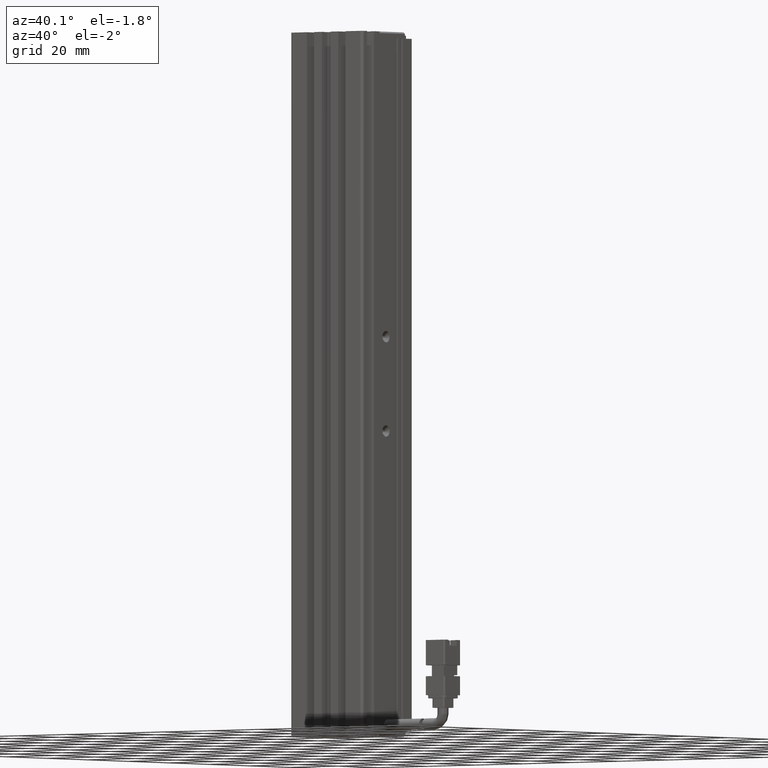
[diagram: clean part render]
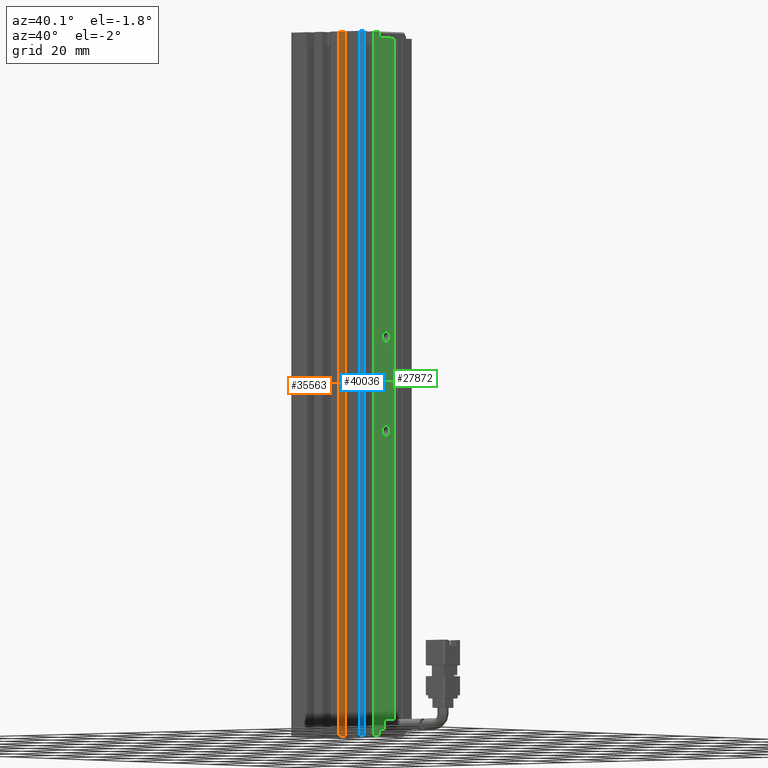
[diagram: same view with three faces highlighted in distinct colors, each labeled with its STEP entity id]
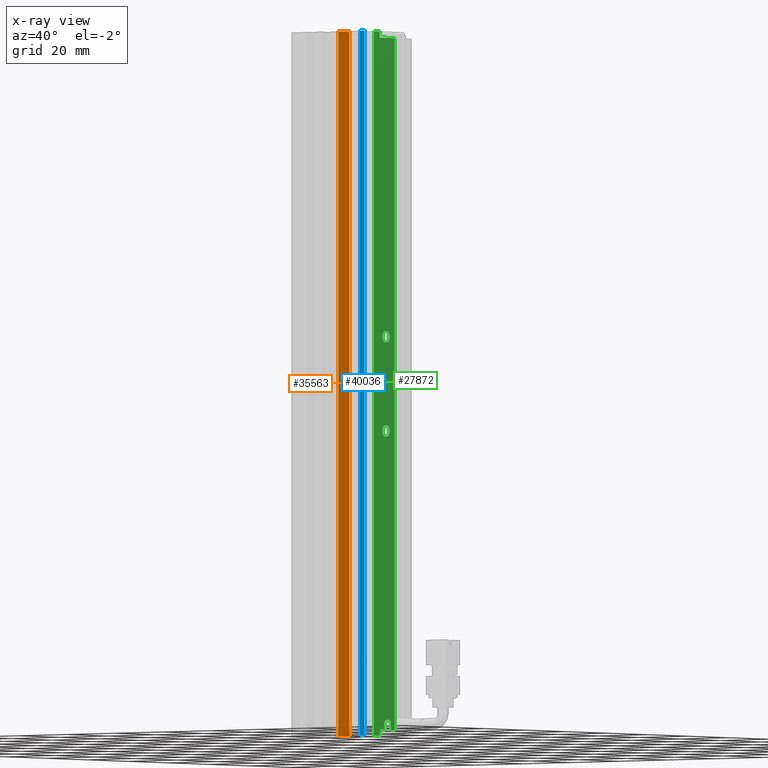
[diagram: x-ray of the same camera — body ghosted, the three highlighted faces saturated]
A machine part, auxiliary view with three faces highlighted in distinct colors.
The next image is the same camera in x-ray (body ghosted, the three faces saturated) — at least one of them is partly hidden behind the body in this view.
Their STEP definitions:

[orange] entity #35563 — the highlighted planar face has unit normal (-1, -0, 0).
#1220 = VECTOR ( 'NONE', #12479, 1000.000000000000000 ) ;
#1649 = AXIS2_PLACEMENT_3D ( 'NONE', #18157, #44726, #21977 ) ;
#2631 = CARTESIAN_POINT ( 'NONE',  ( 45.92537974683541800, 10.69594479660386800, -3.000000000000002700 ) ) ;
#3314 = LINE ( 'NONE', #49228, #12298 ) ;
#3680 = EDGE_LOOP ( 'NONE', ( #29346, #7209, #21223, #5135 ) ) ;
#5135 = ORIENTED_EDGE ( 'NONE', *, *, #6195, .T. ) ;
#6195 = EDGE_CURVE ( 'NONE', #34228, #33399, #31683, .T. ) ;
#7209 = ORIENTED_EDGE ( 'NONE', *, *, #21504, .F. ) ;
#7237 = LINE ( 'NONE', #37166, #26393 ) ;
#10533 = DIRECTION ( 'NONE',  ( 0.0000000000000000000, 0.0000000000000000000, 1.000000000000000000 ) ) ;
#11780 = CARTESIAN_POINT ( 'NONE',  ( 45.92537974683541800, 10.69594479660386800, -227.0000000000000000 ) ) ;
#12298 = VECTOR ( 'NONE', #30335, 1000.000000000000000 ) ;
#12390 = VECTOR ( 'NONE', #26938, 1000.000000000000000 ) ;
#12479 = DIRECTION ( 'NONE',  ( 0.0000000000000000000, 1.000000000000000000, -0.0000000000000000000 ) ) ;
#18157 = CARTESIAN_POINT ( 'NONE',  ( 45.92537974683541800, 7.083797468354439400, -3.000000000000002700 ) ) ;
#18432 = VERTEX_POINT ( 'NONE', #45256 ) ;
#18820 = VERTEX_POINT ( 'NONE', #2631 ) ;
#21223 = ORIENTED_EDGE ( 'NONE', *, *, #29469, .F. ) ;
#21504 = EDGE_CURVE ( 'NONE', #18820, #18432, #41540, .T. ) ;
#21977 = DIRECTION ( 'NONE',  ( 3.154042683594197100E-016, -1.000000000000000000, 0.0000000000000000000 ) ) ;
#23079 = CARTESIAN_POINT ( 'NONE',  ( 45.92537974683541800, 7.083797468354437600, -3.000000000000002700 ) ) ;
#25231 = CARTESIAN_POINT ( 'NONE',  ( 45.92537974683541800, 16.19594479660386800, -227.0000000000000000 ) ) ;
#25651 = PLANE ( 'NONE',  #1649 ) ;
#26048 = EDGE_CURVE ( 'NONE', #18432, #33399, #3314, .T. ) ;
#26393 = VECTOR ( 'NONE', #10533, 1000.000000000000000 ) ;
#26938 = DIRECTION ( 'NONE',  ( 0.0000000000000000000, 1.000000000000000000, -0.0000000000000000000 ) ) ;
#29346 = ORIENTED_EDGE ( 'NONE', *, *, #26048, .F. ) ;
#29469 = EDGE_CURVE ( 'NONE', #34228, #18820, #7237, .T. ) ;
#30335 = DIRECTION ( 'NONE',  ( 0.0000000000000000000, -0.0000000000000000000, -1.000000000000000000 ) ) ;
#31683 = LINE ( 'NONE', #32620, #1220 ) ;
#32363 = FACE_OUTER_BOUND ( 'NONE', #3680, .T. ) ;
#32620 = CARTESIAN_POINT ( 'NONE',  ( 45.92537974683541800, 7.083797468354437600, -227.0000000000000000 ) ) ;
#33399 = VERTEX_POINT ( 'NONE', #25231 ) ;
#34228 = VERTEX_POINT ( 'NONE', #11780 ) ;
#35563 = ADVANCED_FACE ( 'NONE', ( #32363 ), #25651, .F. ) ;
#37166 = CARTESIAN_POINT ( 'NONE',  ( 45.92537974683541800, 10.69594479660386800, -3.000000000000002700 ) ) ;
#41540 = LINE ( 'NONE', #23079, #12390 ) ;
#44726 = DIRECTION ( 'NONE',  ( -1.000000000000000000, -3.154042683594197100E-016, 0.0000000000000000000 ) ) ;
#45256 = CARTESIAN_POINT ( 'NONE',  ( 45.92537974683541800, 16.19594479660386800, -3.000000000000002700 ) ) ;
#49228 = CARTESIAN_POINT ( 'NONE',  ( 45.92537974683541800, 16.19594479660386800, -3.000000000000002700 ) ) ;

[blue] entity #40036 — the highlighted cylindrical surface (edge-blend (fillet) strip) has radius 1 mm, axis along (-0, -0, -1).
#298 = DIRECTION ( 'NONE',  ( -0.0000000000000000000, -0.0000000000000000000, -1.000000000000000000 ) ) ;
#2434 = DIRECTION ( 'NONE',  ( -1.000000000000000000, 0.0000000000000000000, 0.0000000000000000000 ) ) ;
#2619 = CIRCLE ( 'NONE', #33479, 1.000000000000000900 ) ;
#3244 = EDGE_CURVE ( 'NONE', #47535, #22094, #41938, .T. ) ;
#3844 = VECTOR ( 'NONE', #28817, 1000.000000000000000 ) ;
#4108 = CARTESIAN_POINT ( 'NONE',  ( 54.92537974683542500, 10.69594479660386800, -3.000000000000002700 ) ) ;
#4438 = DIRECTION ( 'NONE',  ( -0.0000000000000000000, -0.0000000000000000000, -1.000000000000000000 ) ) ;
#6573 = ORIENTED_EDGE ( 'NONE', *, *, #40054, .T. ) ;
#12623 = ORIENTED_EDGE ( 'NONE', *, *, #22292, .T. ) ;
#13808 = ORIENTED_EDGE ( 'NONE', *, *, #3244, .T. ) ;
#14035 = LINE ( 'NONE', #32611, #3844 ) ;
#14767 = VECTOR ( 'NONE', #4438, 1000.000000000000000 ) ;
#22094 = VERTEX_POINT ( 'NONE', #4108 ) ;
#22292 = EDGE_CURVE ( 'NONE', #30511, #31824, #2619, .T. ) ;
#22975 = CARTESIAN_POINT ( 'NONE',  ( 55.92537974683542500, 11.69594479660387000, -227.0000000000000000 ) ) ;
#24121 = AXIS2_PLACEMENT_3D ( 'NONE', #41409, #40130, #40450 ) ;
#25345 = DIRECTION ( 'NONE',  ( 0.0000000000000000000, 0.0000000000000000000, 1.000000000000000000 ) ) ;
#26304 = EDGE_CURVE ( 'NONE', #31824, #47535, #14035, .T. ) ;
#27335 = CARTESIAN_POINT ( 'NONE',  ( 54.92537974683542500, 10.69594479660386800, -3.000000000000002700 ) ) ;
#28817 = DIRECTION ( 'NONE',  ( 0.0000000000000000000, 0.0000000000000000000, 1.000000000000000000 ) ) ;
#30511 = VERTEX_POINT ( 'NONE', #35916 ) ;
#31824 = VERTEX_POINT ( 'NONE', #22975 ) ;
#32611 = CARTESIAN_POINT ( 'NONE',  ( 55.92537974683542500, 11.69594479660387000, -3.000000000000002700 ) ) ;
#33479 = AXIS2_PLACEMENT_3D ( 'NONE', #48068, #25345, #2434 ) ;
#35916 = CARTESIAN_POINT ( 'NONE',  ( 54.92537974683542500, 10.69594479660386800, -227.0000000000000000 ) ) ;
#38592 = ORIENTED_EDGE ( 'NONE', *, *, #26304, .T. ) ;
#38773 = CARTESIAN_POINT ( 'NONE',  ( 55.92537974683542500, 11.69594479660387000, -3.000000000000002700 ) ) ;
#40036 = ADVANCED_FACE ( 'NONE', ( #42107 ), #47481, .T. ) ;
#40054 = EDGE_CURVE ( 'NONE', #22094, #30511, #43915, .T. ) ;
#40130 = DIRECTION ( 'NONE',  ( -0.0000000000000000000, -0.0000000000000000000, -1.000000000000000000 ) ) ;
#40450 = DIRECTION ( 'NONE',  ( -1.000000000000000000, 0.0000000000000000000, 0.0000000000000000000 ) ) ;
#41409 = CARTESIAN_POINT ( 'NONE',  ( 54.92537974683542500, 11.69594479660387000, -3.000000000000002700 ) ) ;
#41926 = EDGE_LOOP ( 'NONE', ( #13808, #6573, #12623, #38592 ) ) ;
#41938 = CIRCLE ( 'NONE', #24121, 1.000000000000000900 ) ;
#42107 = FACE_OUTER_BOUND ( 'NONE', #41926, .T. ) ;
#42218 = DIRECTION ( 'NONE',  ( -1.000000000000000000, 0.0000000000000000000, 0.0000000000000000000 ) ) ;
#43915 = LINE ( 'NONE', #27335, #14767 ) ;
#45915 = CARTESIAN_POINT ( 'NONE',  ( 54.92537974683542500, 11.69594479660387000, -3.000000000000002700 ) ) ;
#45963 = AXIS2_PLACEMENT_3D ( 'NONE', #45915, #298, #42218 ) ;
#47481 = CYLINDRICAL_SURFACE ( 'NONE', #45963, 1.000000000000000900 ) ;
#47535 = VERTEX_POINT ( 'NONE', #38773 ) ;
#48068 = CARTESIAN_POINT ( 'NONE',  ( 54.92537974683542500, 11.69594479660387000, -227.0000000000000000 ) ) ;

[green] entity #27872 — the highlighted planar face has unit normal (-1, 0, 0).
#78 = DIRECTION ( 'NONE',  ( 0.0000000000000000000, 0.0000000000000000000, -1.000000000000000000 ) ) ;
#245 = AXIS2_PLACEMENT_3D ( 'NONE', #43758, #21029, #47575 ) ;
#282 = DIRECTION ( 'NONE',  ( 0.0000000000000000000, 0.0000000000000000000, 1.000000000000000000 ) ) ;
#389 = FACE_BOUND ( 'NONE', #14933, .T. ) ;
#1050 = EDGE_CURVE ( 'NONE', #46116, #6008, #15749, .T. ) ;
#1576 = FACE_BOUND ( 'NONE', #27592, .T. ) ;
#2552 = ORIENTED_EDGE ( 'NONE', *, *, #35767, .F. ) ;
#2586 = ORIENTED_EDGE ( 'NONE', *, *, #22222, .F. ) ;
#2802 = EDGE_CURVE ( 'NONE', #5760, #36549, #33785, .T. ) ;
#3013 = CARTESIAN_POINT ( 'NONE',  ( 55.92537974683543200, 26.69594479660386800, -225.0000000000000000 ) ) ;
#3319 = PLANE ( 'NONE',  #4853 ) ;
#4196 = EDGE_CURVE ( 'NONE', #48881, #45899, #27899, .T. ) ;
#4248 = CIRCLE ( 'NONE', #42472, 1.800000000073395800 ) ;
#4451 = CARTESIAN_POINT ( 'NONE',  ( 55.92537974683543200, 19.19594479660386500, -225.0000000000000000 ) ) ;
#4763 = AXIS2_PLACEMENT_3D ( 'NONE', #33800, #33791, #33747 ) ;
#4793 = VERTEX_POINT ( 'NONE', #47905 ) ;
#4853 = AXIS2_PLACEMENT_3D ( 'NONE', #45305, #22551, #49122 ) ;
#5760 = VERTEX_POINT ( 'NONE', #30543 ) ;
#6008 = VERTEX_POINT ( 'NONE', #4451 ) ;
#6271 = VECTOR ( 'NONE', #43365, 1000.000000000000000 ) ;
#6461 = LINE ( 'NONE', #30555, #45790 ) ;
#7514 = VECTOR ( 'NONE', #42612, 1000.000000000000000 ) ;
#7523 = VECTOR ( 'NONE', #22503, 1000.000000000000000 ) ;
#7877 = ORIENTED_EDGE ( 'NONE', *, *, #47082, .F. ) ;
#8739 = LINE ( 'NONE', #18681, #7523 ) ;
#8821 = VECTOR ( 'NONE', #36029, 1000.000000000000000 ) ;
#11013 = EDGE_CURVE ( 'NONE', #34200, #48057, #20104, .T. ) ;
#11023 = CARTESIAN_POINT ( 'NONE',  ( 55.92537974683541100, 7.083797468354417100, -227.0000000000000000 ) ) ;
#11365 = EDGE_CURVE ( 'NONE', #34200, #14654, #17571, .T. ) ;
#12723 = ORIENTED_EDGE ( 'NONE', *, *, #29838, .F. ) ;
#12974 = CARTESIAN_POINT ( 'NONE',  ( 55.92537974683541100, 7.083797468354417100, -5.000000000000004400 ) ) ;
#13100 = VERTEX_POINT ( 'NONE', #46369 ) ;
#13162 = DIRECTION ( 'NONE',  ( 1.000000000000000000, 0.0000000000000000000, 0.0000000000000000000 ) ) ;
#13226 = CARTESIAN_POINT ( 'NONE',  ( 55.92537974682178300, 22.39594479660386700, -130.0000000000000000 ) ) ;
#13702 = VECTOR ( 'NONE', #16834, 1000.000000000000000 ) ;
#14654 = VERTEX_POINT ( 'NONE', #45456 ) ;
#14719 = EDGE_CURVE ( 'NONE', #19888, #48057, #6461, .T. ) ;
#14924 = LINE ( 'NONE', #12974, #13702 ) ;
#14933 = EDGE_LOOP ( 'NONE', ( #2552, #38091 ) ) ;
#15322 = CARTESIAN_POINT ( 'NONE',  ( 55.92537974683539700, 24.84594479660386300, -223.4499999999999900 ) ) ;
#15730 = DIRECTION ( 'NONE',  ( 0.0000000000000000000, 0.0000000000000000000, -1.000000000000000000 ) ) ;
#15749 = LINE ( 'NONE', #20543, #46060 ) ;
#15920 = CARTESIAN_POINT ( 'NONE',  ( 55.92537974683541100, 7.083797468354417100, -225.0000000000000000 ) ) ;
#15979 = DIRECTION ( 'NONE',  ( -0.0000000000000000000, 0.0000000000000000000, 1.000000000000000000 ) ) ;
#16295 = ORIENTED_EDGE ( 'NONE', *, *, #37281, .T. ) ;
#16834 = DIRECTION ( 'NONE',  ( 1.394554826879016100E-015, 1.000000000000000000, -0.0000000000000000000 ) ) ;
#17571 = CIRCLE ( 'NONE', #4763, 1.649999999999998600 ) ;
#18681 = CARTESIAN_POINT ( 'NONE',  ( 55.92537974683542500, 7.083797468354437600, -3.000000000000002700 ) ) ;
#18925 = EDGE_CURVE ( 'NONE', #36549, #4793, #8739, .T. ) ;
#19883 = DIRECTION ( 'NONE',  ( -0.0000000000000000000, 0.0000000000000000000, 1.000000000000000000 ) ) ;
#19888 = VERTEX_POINT ( 'NONE', #3013 ) ;
#20082 = CARTESIAN_POINT ( 'NONE',  ( 55.92537974683542500, 16.49594479660387200, -3.000000000000002700 ) ) ;
#20104 = LINE ( 'NONE', #43306, #26647 ) ;
#20262 = AXIS2_PLACEMENT_3D ( 'NONE', #43334, #20647, #47207 ) ;
#20543 = CARTESIAN_POINT ( 'NONE',  ( 55.92537974683543200, 19.19594479660386500, -3.000000000000002700 ) ) ;
#20647 = DIRECTION ( 'NONE',  ( 1.000000000000000000, 0.0000000000000000000, 0.0000000000000000000 ) ) ;
#20676 = CARTESIAN_POINT ( 'NONE',  ( 55.92537974683540400, 21.54594479660386200, -225.0000000000000000 ) ) ;
#21029 = DIRECTION ( 'NONE',  ( 1.000000000000000000, 0.0000000000000000000, 0.0000000000000000000 ) ) ;
#21392 = VERTEX_POINT ( 'NONE', #22751 ) ;
#21512 = EDGE_LOOP ( 'NONE', ( #16295, #41863, #23037, #44419, #7877, #12723, #26678, #45356, #22052, #24601, #24060, #31223 ) ) ;
#22052 = ORIENTED_EDGE ( 'NONE', *, *, #2802, .F. ) ;
#22222 = EDGE_CURVE ( 'NONE', #45899, #48881, #22372, .T. ) ;
#22288 = VECTOR ( 'NONE', #15979, 1000.000000000000000 ) ;
#22372 = CIRCLE ( 'NONE', #245, 1.799999999989254600 ) ;
#22503 = DIRECTION ( 'NONE',  ( 0.0000000000000000000, 1.000000000000000000, -0.0000000000000000000 ) ) ;
#22551 = DIRECTION ( 'NONE',  ( -1.000000000000000000, 1.394554826879016100E-015, 0.0000000000000000000 ) ) ;
#22631 = EDGE_CURVE ( 'NONE', #35411, #4793, #36000, .T. ) ;
#22751 = CARTESIAN_POINT ( 'NONE',  ( 55.92537974683543900, 26.69594479660386800, -5.000000000000004400 ) ) ;
#22968 = DIRECTION ( 'NONE',  ( 1.000000000000000000, 0.0000000000000000000, 0.0000000000000000000 ) ) ;
#23037 = ORIENTED_EDGE ( 'NONE', *, *, #11013, .T. ) ;
#24060 = ORIENTED_EDGE ( 'NONE', *, *, #1050, .T. ) ;
#24601 = ORIENTED_EDGE ( 'NONE', *, *, #45723, .F. ) ;
#26389 = DIRECTION ( 'NONE',  ( -1.394554826879016100E-015, -1.000000000000000000, 0.0000000000000000000 ) ) ;
#26647 = VECTOR ( 'NONE', #43343, 1000.000000000000000 ) ;
#26678 = ORIENTED_EDGE ( 'NONE', *, *, #22631, .T. ) ;
#27306 = CARTESIAN_POINT ( 'NONE',  ( 55.92537974683542500, 19.19594479660386500, -3.000000000000002700 ) ) ;
#27592 = EDGE_LOOP ( 'NONE', ( #37457, #2586 ) ) ;
#27673 = AXIS2_PLACEMENT_3D ( 'NONE', #13226, #13162, #15730 ) ;
#27872 = ADVANCED_FACE ( 'NONE', ( #389, #30867, #1576 ), #3319, .F. ) ;
#27899 = CIRCLE ( 'NONE', #27673, 1.799999999989254600 ) ;
#28216 = VECTOR ( 'NONE', #26389, 1000.000000000000000 ) ;
#29838 = EDGE_CURVE ( 'NONE', #35411, #21392, #14924, .T. ) ;
#30236 = VECTOR ( 'NONE', #282, 1000.000000000000000 ) ;
#30543 = CARTESIAN_POINT ( 'NONE',  ( 55.92537974683542500, 16.49594479660387200, -227.0000000000000000 ) ) ;
#30555 = CARTESIAN_POINT ( 'NONE',  ( 55.92537974683541100, 7.083797468354417100, -225.0000000000000000 ) ) ;
#30759 = CARTESIAN_POINT ( 'NONE',  ( 55.92537974682178300, 22.39594479660386700, -131.7999999999892700 ) ) ;
#30867 = FACE_OUTER_BOUND ( 'NONE', #21512, .T. ) ;
#31223 = ORIENTED_EDGE ( 'NONE', *, *, #34766, .F. ) ;
#32969 = CARTESIAN_POINT ( 'NONE',  ( 55.92537974683543200, 19.19594479660386500, -227.0000000000000000 ) ) ;
#33747 = DIRECTION ( 'NONE',  ( 0.0000000000000000000, 1.000000000000000000, 0.0000000000000000000 ) ) ;
#33785 = LINE ( 'NONE', #47526, #30236 ) ;
#33791 = DIRECTION ( 'NONE',  ( 1.000000000000000000, 5.687617954022316600E-016, -0.0000000000000000000 ) ) ;
#33800 = CARTESIAN_POINT ( 'NONE',  ( 55.92537974683539700, 23.19594479660386500, -223.4499999999999900 ) ) ;
#34200 = VERTEX_POINT ( 'NONE', #15322 ) ;
#34766 = EDGE_CURVE ( 'NONE', #43481, #6008, #48019, .T. ) ;
#35152 = CARTESIAN_POINT ( 'NONE',  ( 55.92537974682178300, 22.39594479660386700, -128.2000000000107600 ) ) ;
#35238 = VERTEX_POINT ( 'NONE', #42065 ) ;
#35411 = VERTEX_POINT ( 'NONE', #43743 ) ;
#35767 = EDGE_CURVE ( 'NONE', #35238, #13100, #4248, .T. ) ;
#36000 = LINE ( 'NONE', #27306, #22288 ) ;
#36029 = DIRECTION ( 'NONE',  ( -0.0000000000000000000, -0.0000000000000000000, -1.000000000000000000 ) ) ;
#36549 = VERTEX_POINT ( 'NONE', #20082 ) ;
#37122 = CARTESIAN_POINT ( 'NONE',  ( 55.92537974683541100, 24.84594479660386700, -225.0000000000000000 ) ) ;
#37281 = EDGE_CURVE ( 'NONE', #43481, #14654, #45592, .T. ) ;
#37457 = ORIENTED_EDGE ( 'NONE', *, *, #4196, .F. ) ;
#38091 = ORIENTED_EDGE ( 'NONE', *, *, #48488, .F. ) ;
#39196 = LINE ( 'NONE', #43279, #8821 ) ;
#41863 = ORIENTED_EDGE ( 'NONE', *, *, #11365, .F. ) ;
#41931 = DIRECTION ( 'NONE',  ( -1.394554826879016100E-015, -1.000000000000000000, 0.0000000000000000000 ) ) ;
#42065 = CARTESIAN_POINT ( 'NONE',  ( 55.92537974687862600, 22.39594479660386700, -101.8000000000734000 ) ) ;
#42472 = AXIS2_PLACEMENT_3D ( 'NONE', #45711, #22968, #78 ) ;
#42612 = DIRECTION ( 'NONE',  ( -1.394554826879016100E-015, -1.000000000000000000, 0.0000000000000000000 ) ) ;
#43279 = CARTESIAN_POINT ( 'NONE',  ( 55.92537974683543900, 26.69594479660386800, -3.000000000000002700 ) ) ;
#43306 = CARTESIAN_POINT ( 'NONE',  ( 55.92537974683539700, 24.84594479660386700, -225.0000000000000000 ) ) ;
#43334 = CARTESIAN_POINT ( 'NONE',  ( 55.92537974687862600, 22.39594479660386700, -100.0000000000000000 ) ) ;
#43343 = DIRECTION ( 'NONE',  ( -0.0000000000000000000, 2.238352872228124300E-015, -1.000000000000000000 ) ) ;
#43365 = DIRECTION ( 'NONE',  ( -0.0000000000000000000, 1.119176436114062100E-015, 1.000000000000000000 ) ) ;
#43481 = VERTEX_POINT ( 'NONE', #44056 ) ;
#43743 = CARTESIAN_POINT ( 'NONE',  ( 55.92537974683543200, 19.19594479660386500, -5.000000000000004400 ) ) ;
#43758 = CARTESIAN_POINT ( 'NONE',  ( 55.92537974682178300, 22.39594479660386700, -130.0000000000000000 ) ) ;
#44056 = CARTESIAN_POINT ( 'NONE',  ( 55.92537974683542500, 21.54594479660386200, -225.0000000000000000 ) ) ;
#44419 = ORIENTED_EDGE ( 'NONE', *, *, #14719, .F. ) ;
#45305 = CARTESIAN_POINT ( 'NONE',  ( 55.92537974683541100, 7.083797468354417100, -3.000000000000002700 ) ) ;
#45356 = ORIENTED_EDGE ( 'NONE', *, *, #18925, .F. ) ;
#45456 = CARTESIAN_POINT ( 'NONE',  ( 55.92537974683539700, 21.54594479660386200, -223.4499999999999900 ) ) ;
#45592 = LINE ( 'NONE', #20676, #6271 ) ;
#45711 = CARTESIAN_POINT ( 'NONE',  ( 55.92537974687862600, 22.39594479660386700, -100.0000000000000000 ) ) ;
#45723 = EDGE_CURVE ( 'NONE', #46116, #5760, #47205, .T. ) ;
#45790 = VECTOR ( 'NONE', #41931, 1000.000000000000000 ) ;
#45899 = VERTEX_POINT ( 'NONE', #35152 ) ;
#46060 = VECTOR ( 'NONE', #19883, 1000.000000000000000 ) ;
#46116 = VERTEX_POINT ( 'NONE', #32969 ) ;
#46369 = CARTESIAN_POINT ( 'NONE',  ( 55.92537974687862600, 22.39594479660386700, -98.19999999992660400 ) ) ;
#47082 = EDGE_CURVE ( 'NONE', #21392, #19888, #39196, .T. ) ;
#47108 = CIRCLE ( 'NONE', #20262, 1.800000000073395800 ) ;
#47205 = LINE ( 'NONE', #11023, #28216 ) ;
#47207 = DIRECTION ( 'NONE',  ( 0.0000000000000000000, 0.0000000000000000000, -1.000000000000000000 ) ) ;
#47526 = CARTESIAN_POINT ( 'NONE',  ( 55.92537974683542500, 16.49594479660387200, -3.000000000000002700 ) ) ;
#47575 = DIRECTION ( 'NONE',  ( 0.0000000000000000000, 0.0000000000000000000, -1.000000000000000000 ) ) ;
#47905 = CARTESIAN_POINT ( 'NONE',  ( 55.92537974683542500, 19.19594479660386500, -3.000000000000002700 ) ) ;
#48019 = LINE ( 'NONE', #15920, #7514 ) ;
#48057 = VERTEX_POINT ( 'NONE', #37122 ) ;
#48488 = EDGE_CURVE ( 'NONE', #13100, #35238, #47108, .T. ) ;
#48881 = VERTEX_POINT ( 'NONE', #30759 ) ;
#49122 = DIRECTION ( 'NONE',  ( -1.394554826879016100E-015, -1.000000000000000000, 0.0000000000000000000 ) ) ;